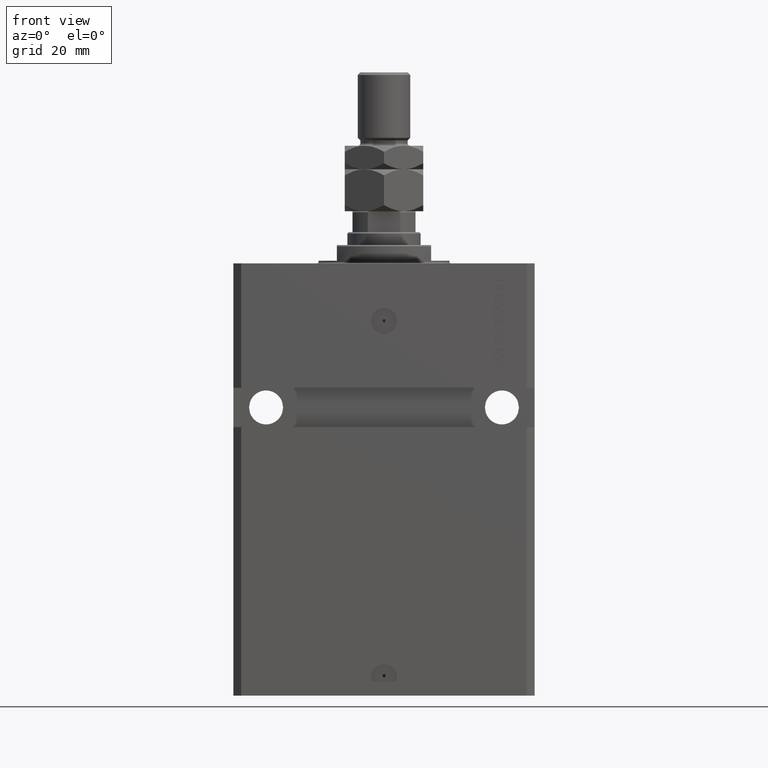
[diagram: clean part render]
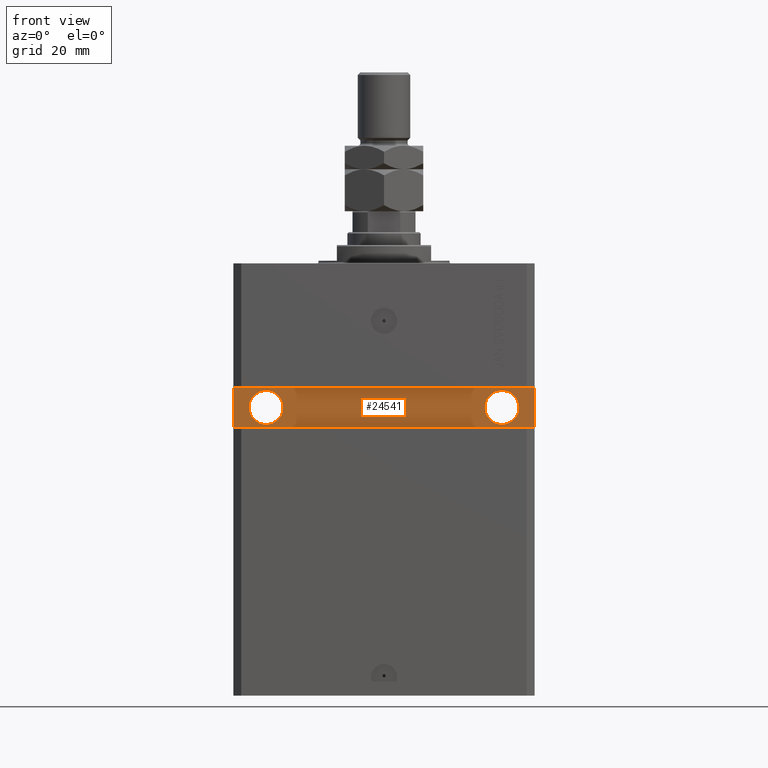
[diagram: same view with one face highlighted and labeled with its STEP entity id]
A machine part, front view. The second image highlights one B-rep face of the part: STEP entity #24541.
In plain terms, the highlighted planar face has unit normal (0, -1, 0).
Its self-contained STEP definition (entity closure, byte-faithful):
#455 = AXIS2_PLACEMENT_3D ( 'NONE', #46445, #6821, #2968 ) ;
#1061 = ORIENTED_EDGE ( 'NONE', *, *, #40967, .T. ) ;
#1152 = CARTESIAN_POINT ( 'NONE',  ( -57.50000000000002132, -40.00000000000000000, -47.50000000000000711 ) ) ;
#1325 = CARTESIAN_POINT ( 'NONE',  ( -51.49999999999998579, -40.00000000000000000, -55.00000000000001421 ) ) ;
#2179 = VERTEX_POINT ( 'NONE', #3284 ) ;
#2326 = DIRECTION ( 'NONE',  ( 1.101411730780568590E-16, -1.000000000000000000, 0.000000000000000000 ) ) ;
#2364 = FACE_BOUND ( 'NONE', #8683, .T. ) ;
#2968 = DIRECTION ( 'NONE',  ( 1.000000000000000000, 0.000000000000000000, 0.000000000000000000 ) ) ;
#3234 = CARTESIAN_POINT ( 'NONE',  ( 57.50000000000000711, -39.99999999999998579, -62.49999999999999289 ) ) ;
#3284 = CARTESIAN_POINT ( 'NONE',  ( 38.50000000000001421, -39.99999999999999289, -55.00000000000000000 ) ) ;
#5981 = DIRECTION ( 'NONE',  ( 1.206764157201257045E-16, -1.000000000000000000, 0.000000000000000000 ) ) ;
#6474 = DIRECTION ( 'NONE',  ( 1.101411730780568590E-16, -1.000000000000000000, 0.000000000000000000 ) ) ;
#6802 = ORIENTED_EDGE ( 'NONE', *, *, #43914, .T. ) ;
#6821 = DIRECTION ( 'NONE',  ( 7.680174481697265102E-17, -1.000000000000000000, 0.000000000000000000 ) ) ;
#7257 = ORIENTED_EDGE ( 'NONE', *, *, #9088, .T. ) ;
#7413 = DIRECTION ( 'NONE',  ( 1.000000000000000000, 0.000000000000000000, 0.000000000000000000 ) ) ;
#7657 = DIRECTION ( 'NONE',  ( 0.000000000000000000, 0.000000000000000000, -1.000000000000000000 ) ) ;
#7738 = DIRECTION ( 'NONE',  ( 0.000000000000000000, 0.000000000000000000, 1.000000000000000000 ) ) ;
#8486 = EDGE_CURVE ( 'NONE', #37868, #10060, #15612, .T. ) ;
#8634 = EDGE_CURVE ( 'NONE', #10060, #37868, #11772, .T. ) ;
#8662 = AXIS2_PLACEMENT_3D ( 'NONE', #19893, #2326, #16773 ) ;
#8683 = EDGE_LOOP ( 'NONE', ( #27574, #23415 ) ) ;
#9088 = EDGE_CURVE ( 'NONE', #13273, #14176, #26745, .T. ) ;
#9154 = DIRECTION ( 'NONE',  ( -1.000000000000000000, -1.206764157201257045E-16, -1.810146235801885321E-16 ) ) ;
#10060 = VERTEX_POINT ( 'NONE', #1325 ) ;
#10502 = EDGE_CURVE ( 'NONE', #28549, #13273, #29503, .T. ) ;
#11772 = CIRCLE ( 'NONE', #8662, 6.499999999999999112 ) ;
#12730 = FACE_BOUND ( 'NONE', #15565, .T. ) ;
#12760 = LINE ( 'NONE', #46118, #32646 ) ;
#13199 = PLANE ( 'NONE',  #15978 ) ;
#13273 = VERTEX_POINT ( 'NONE', #37067 ) ;
#13893 = EDGE_LOOP ( 'NONE', ( #7257, #1061, #6802, #35084 ) ) ;
#14176 = VERTEX_POINT ( 'NONE', #3234 ) ;
#15565 = EDGE_LOOP ( 'NONE', ( #35264, #25247 ) ) ;
#15612 = CIRCLE ( 'NONE', #17113, 6.499999999999999112 ) ;
#15978 = AXIS2_PLACEMENT_3D ( 'NONE', #27835, #5981, #18222 ) ;
#16773 = DIRECTION ( 'NONE',  ( 1.000000000000000000, 0.000000000000000000, 0.000000000000000000 ) ) ;
#17113 = AXIS2_PLACEMENT_3D ( 'NONE', #43910, #6474, #7413 ) ;
#17545 = CARTESIAN_POINT ( 'NONE',  ( -38.49999999999998579, -40.00000000000000000, -55.00000000000001421 ) ) ;
#18222 = DIRECTION ( 'NONE',  ( 1.000000000000000000, 1.206764157201257045E-16, 0.000000000000000000 ) ) ;
#19893 = CARTESIAN_POINT ( 'NONE',  ( -44.99999999999998579, -40.00000000000000000, -55.00000000000001421 ) ) ;
#21181 = CIRCLE ( 'NONE', #455, 6.499999999999999112 ) ;
#21732 = VECTOR ( 'NONE', #36831, 1000.000000000000000 ) ;
#23301 = VECTOR ( 'NONE', #7657, 1000.000000000000000 ) ;
#23415 = ORIENTED_EDGE ( 'NONE', *, *, #8634, .F. ) ;
#24541 = ADVANCED_FACE ( 'NONE', ( #12730, #2364, #46089 ), #13199, .T. ) ;
#25228 = AXIS2_PLACEMENT_3D ( 'NONE', #45172, #38206, #38675 ) ;
#25247 = ORIENTED_EDGE ( 'NONE', *, *, #30046, .F. ) ;
#25973 = CIRCLE ( 'NONE', #25228, 6.499999999999999112 ) ;
#26745 = LINE ( 'NONE', #30340, #21732 ) ;
#27574 = ORIENTED_EDGE ( 'NONE', *, *, #8486, .F. ) ;
#27835 = CARTESIAN_POINT ( 'NONE',  ( 4.842396851142260860E-15, -39.99999999999999289, 0.000000000000000000 ) ) ;
#28549 = VERTEX_POINT ( 'NONE', #38417 ) ;
#29503 = LINE ( 'NONE', #1152, #23301 ) ;
#29632 = VECTOR ( 'NONE', #7738, 1000.000000000000000 ) ;
#30046 = EDGE_CURVE ( 'NONE', #2179, #42904, #25973, .T. ) ;
#30340 = CARTESIAN_POINT ( 'NONE',  ( -57.50000000000002132, -40.00000000000000000, -62.50000000000000000 ) ) ;
#32646 = VECTOR ( 'NONE', #9154, 1000.000000000000000 ) ;
#35084 = ORIENTED_EDGE ( 'NONE', *, *, #10502, .T. ) ;
#35264 = ORIENTED_EDGE ( 'NONE', *, *, #45448, .F. ) ;
#35707 = CARTESIAN_POINT ( 'NONE',  ( 57.50000000000000711, -39.99999999999998579, -47.49999999999998579 ) ) ;
#36831 = DIRECTION ( 'NONE',  ( 1.000000000000000000, 1.206764157201257045E-16, 6.033820786006285224E-17 ) ) ;
#37067 = CARTESIAN_POINT ( 'NONE',  ( -57.50000000000002132, -40.00000000000000000, -62.50000000000000000 ) ) ;
#37868 = VERTEX_POINT ( 'NONE', #17545 ) ;
#38206 = DIRECTION ( 'NONE',  ( 7.680174481697265102E-17, -1.000000000000000000, 0.000000000000000000 ) ) ;
#38417 = CARTESIAN_POINT ( 'NONE',  ( -57.50000000000002132, -40.00000000000000000, -47.50000000000000711 ) ) ;
#38675 = DIRECTION ( 'NONE',  ( 1.000000000000000000, 0.000000000000000000, 0.000000000000000000 ) ) ;
#39331 = CARTESIAN_POINT ( 'NONE',  ( 51.50000000000001421, -39.99999999999999289, -55.00000000000000000 ) ) ;
#40657 = LINE ( 'NONE', #40890, #29632 ) ;
#40890 = CARTESIAN_POINT ( 'NONE',  ( 57.50000000000000711, -39.99999999999998579, -62.49999999999999289 ) ) ;
#40967 = EDGE_CURVE ( 'NONE', #14176, #46252, #40657, .T. ) ;
#42904 = VERTEX_POINT ( 'NONE', #39331 ) ;
#43910 = CARTESIAN_POINT ( 'NONE',  ( -44.99999999999998579, -40.00000000000000000, -55.00000000000001421 ) ) ;
#43914 = EDGE_CURVE ( 'NONE', #46252, #28549, #12760, .T. ) ;
#45172 = CARTESIAN_POINT ( 'NONE',  ( 45.00000000000001421, -39.99999999999999289, -55.00000000000000000 ) ) ;
#45448 = EDGE_CURVE ( 'NONE', #42904, #2179, #21181, .T. ) ;
#46089 = FACE_OUTER_BOUND ( 'NONE', #13893, .T. ) ;
#46118 = CARTESIAN_POINT ( 'NONE',  ( 57.50000000000000711, -39.99999999999998579, -47.49999999999998579 ) ) ;
#46252 = VERTEX_POINT ( 'NONE', #35707 ) ;
#46445 = CARTESIAN_POINT ( 'NONE',  ( 45.00000000000001421, -39.99999999999999289, -55.00000000000000000 ) ) ;